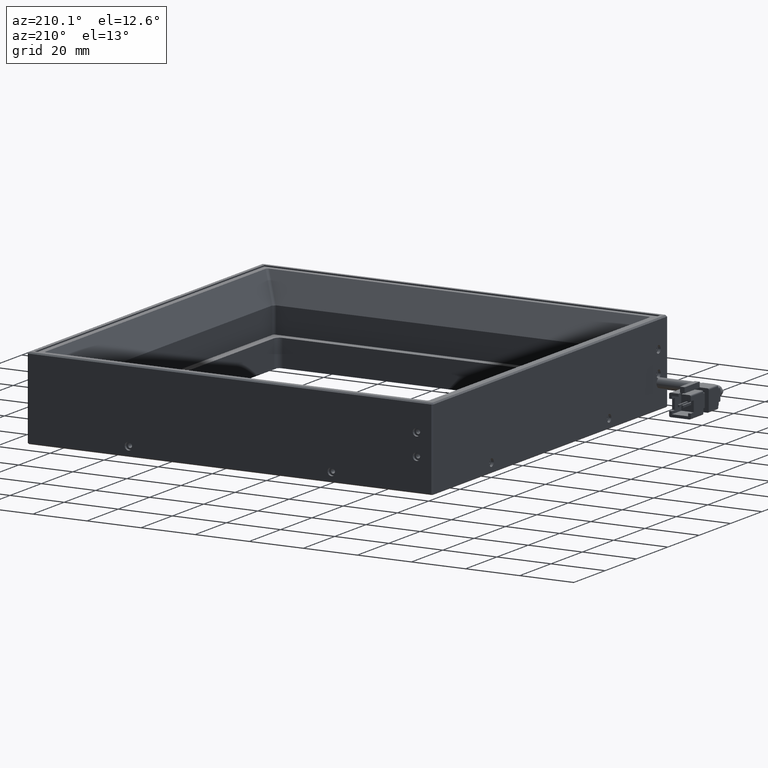
[diagram: clean part render]
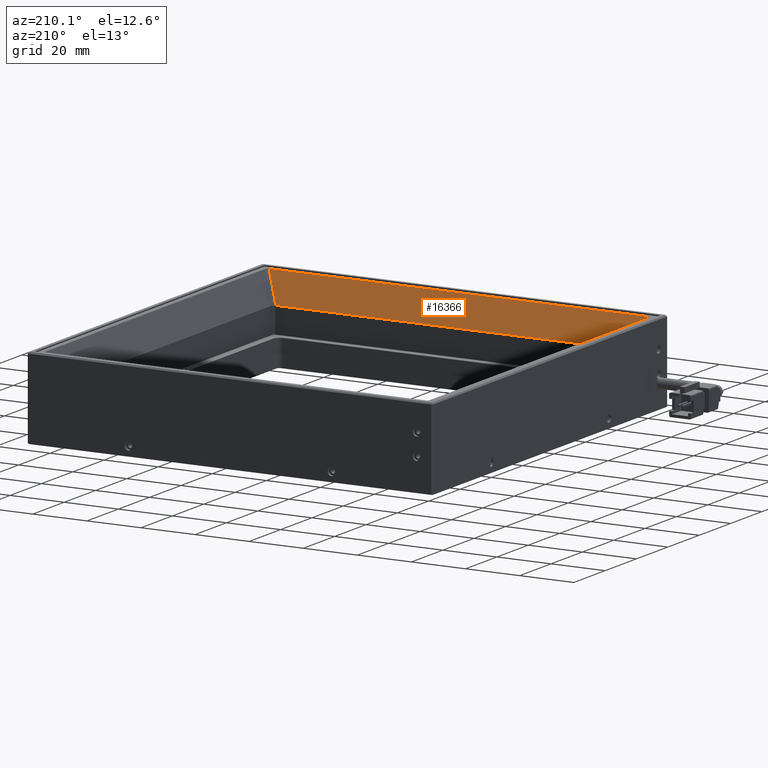
[diagram: same view with one face highlighted and labeled with its STEP entity id]
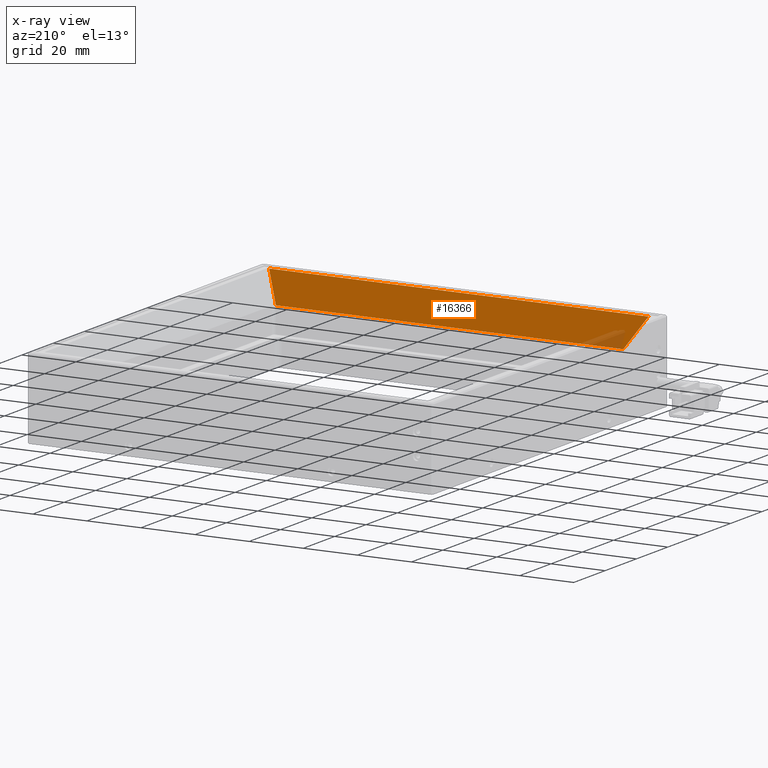
[diagram: x-ray of the same camera — body ghosted, the highlighted face saturated]
A machine part, auxiliary view. The second image highlights one B-rep face of the part: STEP entity #16366.
The next image is the same camera in x-ray: the body ghosted, the highlighted face saturated — about 4% of this face is hidden behind the body in this view.
In plain terms, the highlighted planar face has unit normal (-0, 0.866, 0.5).
Its self-contained STEP definition (entity closure, byte-faithful):
#377 = EDGE_CURVE ( 'NONE', #14911, #10452, #6068, .T. ) ;
#413 =( BOUNDED_CURVE ( )  B_SPLINE_CURVE ( 3, ( #12137, #16890, #1213, #12196 ),
 .UNSPECIFIED., .F., .F. ) 
 B_SPLINE_CURVE_WITH_KNOTS ( ( 4, 4 ),
 ( 3.141592653589793100, 3.267932781160821900 ),
 .UNSPECIFIED. ) 
 CURVE ( )  GEOMETRIC_REPRESENTATION_ITEM ( )  RATIONAL_B_SPLINE_CURVE ( ( 1.000000000000000000, 0.9986702899479109600, 0.9986702899479109600, 1.000000000000000000 ) ) 
 REPRESENTATION_ITEM ( '' )  );
#857 = ORIENTED_EDGE ( 'NONE', *, *, #12543, .T. ) ;
#1213 = CARTESIAN_POINT ( 'NONE',  ( -74.01594938293537500, -54.34795901752791300, 14.57629245132108600 ) ) ;
#1841 = VERTEX_POINT ( 'NONE', #8207 ) ;
#1914 = VECTOR ( 'NONE', #17977, 1000.000000000000000 ) ;
#2363 = CARTESIAN_POINT ( 'NONE',  ( 61.16824938067712500, -54.35061932287364100, 14.58090023534351900 ) ) ;
#2653 = PLANE ( 'NONE',  #12324 ) ;
#3566 = CARTESIAN_POINT ( 'NONE',  ( -73.93175061932289800, -54.35061932287364100, 14.58090023534350300 ) ) ;
#3906 = DIRECTION ( 'NONE',  ( -1.000000000000000000, -1.530835117677397400E-016, -4.301255627782132800E-017 ) ) ;
#4090 = EDGE_CURVE ( 'NONE', #8389, #14911, #8671, .T. ) ;
#4475 = VECTOR ( 'NONE', #15436, 1000.000000000000100 ) ;
#4785 = CARTESIAN_POINT ( 'NONE',  ( 54.39425367315979500, -54.34264901914080100, 14.56709526432650200 ) ) ;
#4827 = CARTESIAN_POINT ( 'NONE',  ( -79.96572521553845500, -60.25061932287368200, 24.79999999999997200 ) ) ;
#5381 = CARTESIAN_POINT ( 'NONE',  ( 63.16824938067708200, -60.25061932287368200, 24.79999999999997200 ) ) ;
#6068 = LINE ( 'NONE', #5381, #1914 ) ;
#7417 = VERTEX_POINT ( 'NONE', #3566 ) ;
#8207 = CARTESIAN_POINT ( 'NONE',  ( 54.26824938067707600, -54.35061932287364100, 14.58090023534351700 ) ) ;
#8371 = EDGE_LOOP ( 'NONE', ( #11959, #16418, #857, #18503, #12261, #19480 ) ) ;
#8389 = VERTEX_POINT ( 'NONE', #10907 ) ;
#8671 = LINE ( 'NONE', #15363, #4475 ) ;
#8684 = CARTESIAN_POINT ( 'NONE',  ( 54.31039078937438100, -54.35061932287362700, 14.58090023534351300 ) ) ;
#9185 = LINE ( 'NONE', #2363, #12900 ) ;
#9609 = FACE_OUTER_BOUND ( 'NONE', #8371, .T. ) ;
#9796 = EDGE_CURVE ( 'NONE', #18386, #1841, #14122, .T. ) ;
#9942 = VECTOR ( 'NONE', #19580, 1000.000000000000200 ) ;
#10197 = CARTESIAN_POINT ( 'NONE',  ( 54.35244814428954600, -54.34795901752791300, 14.57629245132110700 ) ) ;
#10319 = EDGE_CURVE ( 'NONE', #1841, #7417, #9185, .T. ) ;
#10452 = VERTEX_POINT ( 'NONE', #18298 ) ;
#10547 = DIRECTION ( 'NONE',  ( 3.929178946556880400E-017, -0.5000000000000002200, 0.8660254037844384900 ) ) ;
#10907 = CARTESIAN_POINT ( 'NONE',  ( -74.05775491180561700, -54.34264901914082900, 14.56709526432648400 ) ) ;
#11789 = CARTESIAN_POINT ( 'NONE',  ( 54.39425367315979500, -54.34264901914080100, 14.56709526432650200 ) ) ;
#11959 = ORIENTED_EDGE ( 'NONE', *, *, #9796, .T. ) ;
#12137 = CARTESIAN_POINT ( 'NONE',  ( -73.93175061932289800, -54.35061932287364100, 14.58090023534350300 ) ) ;
#12196 = CARTESIAN_POINT ( 'NONE',  ( -74.05775491180561700, -54.34264901914082900, 14.56709526432648400 ) ) ;
#12261 = ORIENTED_EDGE ( 'NONE', *, *, #377, .T. ) ;
#12324 = AXIS2_PLACEMENT_3D ( 'NONE', #15226, #19962, #10547 ) ;
#12543 = EDGE_CURVE ( 'NONE', #7417, #8389, #413, .T. ) ;
#12900 = VECTOR ( 'NONE', #3906, 1000.000000000000000 ) ;
#14122 =( BOUNDED_CURVE ( )  B_SPLINE_CURVE ( 3, ( #11789, #10197, #8684, #19679 ),
 .UNSPECIFIED., .F., .F. ) 
 B_SPLINE_CURVE_WITH_KNOTS ( ( 4, 4 ),
 ( 3.015252526018764400, 3.141592653589793100 ),
 .UNSPECIFIED. ) 
 CURVE ( )  GEOMETRIC_REPRESENTATION_ITEM ( )  RATIONAL_B_SPLINE_CURVE ( ( 1.000000000000000000, 0.9986702899479109600, 0.9986702899479109600, 1.000000000000000000 ) ) 
 REPRESENTATION_ITEM ( '' )  );
#14125 = LINE ( 'NONE', #18015, #9942 ) ;
#14911 = VERTEX_POINT ( 'NONE', #4827 ) ;
#15160 = EDGE_CURVE ( 'NONE', #10452, #18386, #14125, .T. ) ;
#15226 = CARTESIAN_POINT ( 'NONE',  ( 61.16824938067712500, -60.25061932287368200, 24.79999999999997200 ) ) ;
#15363 = CARTESIAN_POINT ( 'NONE',  ( -74.05775491180561700, -54.34264901914082900, 14.56709526432648600 ) ) ;
#15436 = DIRECTION ( 'NONE',  ( -0.4472135954999548200, -0.4472135954999585900, 0.7745966692414847400 ) ) ;
#16366 = ADVANCED_FACE ( 'NONE', ( #9609 ), #2653, .T. ) ;
#16418 = ORIENTED_EDGE ( 'NONE', *, *, #10319, .T. ) ;
#16890 = CARTESIAN_POINT ( 'NONE',  ( -73.97389202802020200, -54.35061932287362700, 14.58090023534349200 ) ) ;
#17977 = DIRECTION ( 'NONE',  ( 1.000000000000000000, 7.978533672646619300E-017, 6.938351866337134200E-019 ) ) ;
#18015 = CARTESIAN_POINT ( 'NONE',  ( 60.30222397689266200, -60.25061932287368200, 24.79999999999997200 ) ) ;
#18298 = CARTESIAN_POINT ( 'NONE',  ( 60.30222397689266200, -60.25061932287368200, 24.79999999999997200 ) ) ;
#18386 = VERTEX_POINT ( 'NONE', #4785 ) ;
#18503 = ORIENTED_EDGE ( 'NONE', *, *, #4090, .T. ) ;
#19480 = ORIENTED_EDGE ( 'NONE', *, *, #15160, .T. ) ;
#19580 = DIRECTION ( 'NONE',  ( -0.4472135954999592000, 0.4472135954999574800, -0.7745966692414828500 ) ) ;
#19679 = CARTESIAN_POINT ( 'NONE',  ( 54.26824938067707600, -54.35061932287364100, 14.58090023534351700 ) ) ;
#19962 = DIRECTION ( 'NONE',  ( -1.540804882303073300E-016, 0.8660254037844386000, 0.5000000000000003300 ) ) ;